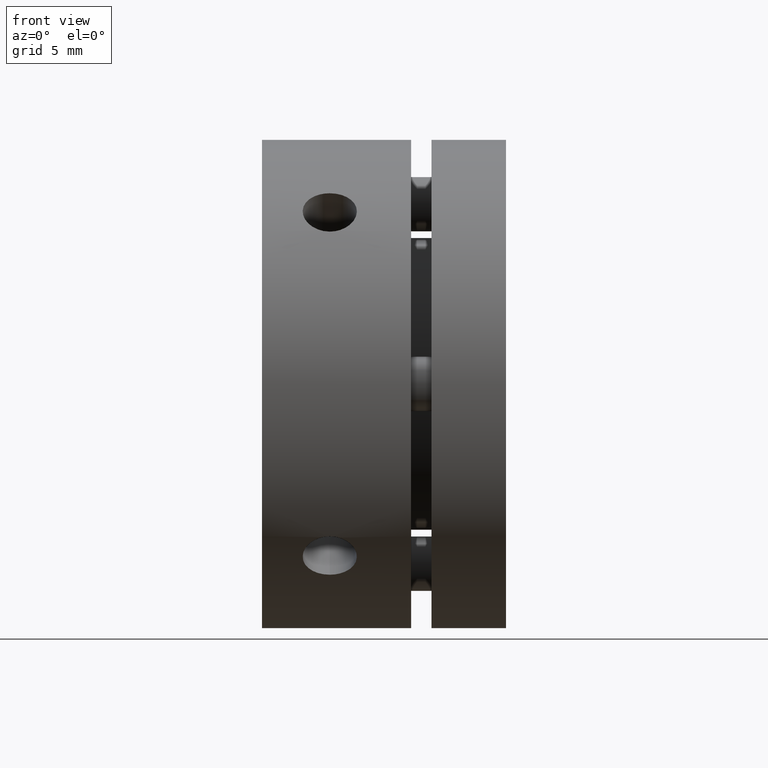
[diagram: clean part render]
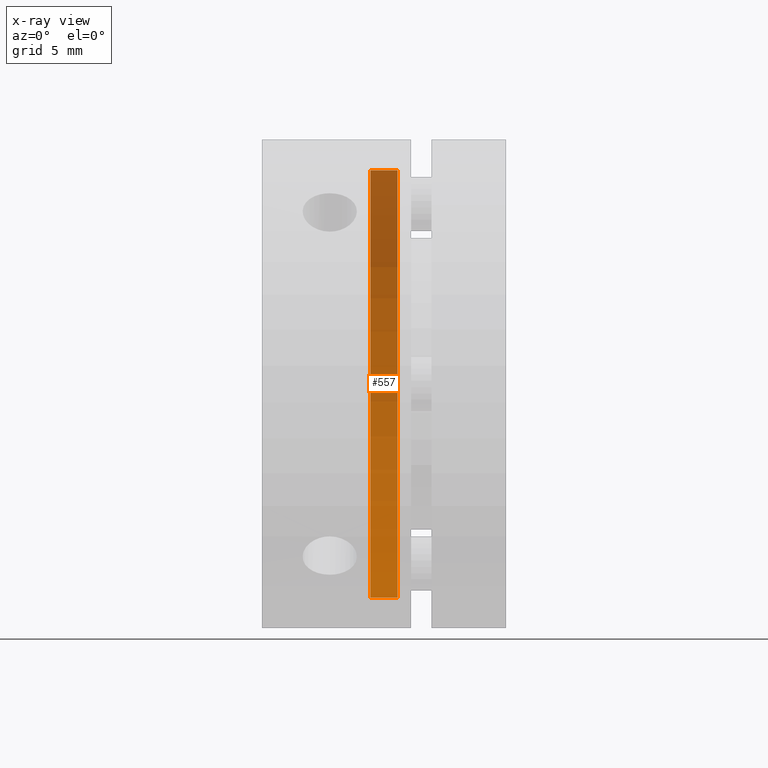
[diagram: x-ray — body ghosted, one internal face saturated and labeled with its STEP entity id]
A machine part, front view, then the same camera in x-ray: the body is ghosted and one INTERNAL B-rep face — a face not visible from any outside direction — is saturated and labeled: STEP entity #557.
In plain terms, the highlighted cylindrical surface (partial cylindrical patch) has radius 15.75 mm, axis along (-1, 0, 0).
Its self-contained STEP definition (entity closure, byte-faithful):
#350 = DIRECTION ( 'NONE',  ( 0.0000000000000000000, 0.0000000000000000000, 1.000000000000000000 ) ) ;
#352 = DIRECTION ( 'NONE',  ( -1.000000000000000000, 0.0000000000000000000, 0.0000000000000000000 ) ) ;
#354 = CARTESIAN_POINT ( 'NONE',  ( 9.000000000000017800, 0.0000000000000000000, 0.0000000000000000000 ) ) ;
#557 = ADVANCED_FACE ( 'NONE', ( #1508 ), #1517, .F. ) ;
#751 = EDGE_LOOP ( 'NONE', ( #938, #939, #940, #941 ) ) ;
#938 = ORIENTED_EDGE ( 'NONE', *, *, #1015, .F. ) ;
#939 = ORIENTED_EDGE ( 'NONE', *, *, #1050, .T. ) ;
#940 = ORIENTED_EDGE ( 'NONE', *, *, #1017, .T. ) ;
#941 = ORIENTED_EDGE ( 'NONE', *, *, #1051, .T. ) ;
#1015 = EDGE_CURVE ( 'NONE', #1365, #1280, #2529, .T. ) ;
#1017 = EDGE_CURVE ( 'NONE', #1375, #1373, #2534, .T. ) ;
#1050 = EDGE_CURVE ( 'NONE', #1365, #1375, #2576, .T. ) ;
#1051 = EDGE_CURVE ( 'NONE', #1373, #1280, #2577, .T. ) ;
#1280 = VERTEX_POINT ( 'NONE', #3136 ) ;
#1365 = VERTEX_POINT ( 'NONE', #3218 ) ;
#1373 = VERTEX_POINT ( 'NONE', #3226 ) ;
#1375 = VERTEX_POINT ( 'NONE', #3228 ) ;
#1508 = FACE_OUTER_BOUND ( 'NONE', #751, .T. ) ;
#1517 = CYLINDRICAL_SURFACE ( 'NONE', #1761, 15.75000000000000400 ) ;
#1761 = AXIS2_PLACEMENT_3D ( 'NONE', #354, #352, #350 ) ;
#1894 = AXIS2_PLACEMENT_3D ( 'NONE', #2901, #2902, #2903 ) ;
#1895 = AXIS2_PLACEMENT_3D ( 'NONE', #2904, #2905, #2906 ) ;
#2372 = DIRECTION ( 'NONE',  ( -1.000000000000000000, 0.0000000000000000000, 0.0000000000000000000 ) ) ;
#2373 = CARTESIAN_POINT ( 'NONE',  ( 9.000000000000017800, 0.0000000000000000000, 15.75000000000000400 ) ) ;
#2374 = DIRECTION ( 'NONE',  ( -1.000000000000000000, 0.0000000000000000000, 0.0000000000000000000 ) ) ;
#2375 = CARTESIAN_POINT ( 'NONE',  ( 9.000000000000017800, 1.928818708657081700E-015, -15.75000000000000400 ) ) ;
#2529 = LINE ( 'NONE', #2375, #2533 ) ;
#2533 = VECTOR ( 'NONE', #2372, 1000.000000000000000 ) ;
#2534 = LINE ( 'NONE', #2373, #2536 ) ;
#2536 = VECTOR ( 'NONE', #2374, 1000.000000000000000 ) ;
#2576 = CIRCLE ( 'NONE', #1894, 15.75000000000000400 ) ;
#2577 = CIRCLE ( 'NONE', #1895, 15.75000000000000400 ) ;
#2901 = CARTESIAN_POINT ( 'NONE',  ( 10.00000000000001400, 0.0000000000000000000, 0.0000000000000000000 ) ) ;
#2902 = DIRECTION ( 'NONE',  ( 1.000000000000000000, -0.0000000000000000000, -0.0000000000000000000 ) ) ;
#2903 = DIRECTION ( 'NONE',  ( 0.0000000000000000000, 0.0000000000000000000, 1.000000000000000000 ) ) ;
#2904 = CARTESIAN_POINT ( 'NONE',  ( 8.000000000000023100, 0.0000000000000000000, 0.0000000000000000000 ) ) ;
#2905 = DIRECTION ( 'NONE',  ( -1.000000000000000000, 0.0000000000000000000, 0.0000000000000000000 ) ) ;
#2906 = DIRECTION ( 'NONE',  ( 0.0000000000000000000, 0.0000000000000000000, 1.000000000000000000 ) ) ;
#3136 = CARTESIAN_POINT ( 'NONE',  ( 8.000000000000023100, 1.928818708657081700E-015, -15.75000000000000400 ) ) ;
#3218 = CARTESIAN_POINT ( 'NONE',  ( 10.00000000000001400, 1.928818708657081700E-015, -15.75000000000000400 ) ) ;
#3226 = CARTESIAN_POINT ( 'NONE',  ( 8.000000000000023100, 0.0000000000000000000, 15.75000000000000400 ) ) ;
#3228 = CARTESIAN_POINT ( 'NONE',  ( 10.00000000000001400, 0.0000000000000000000, 15.75000000000000400 ) ) ;